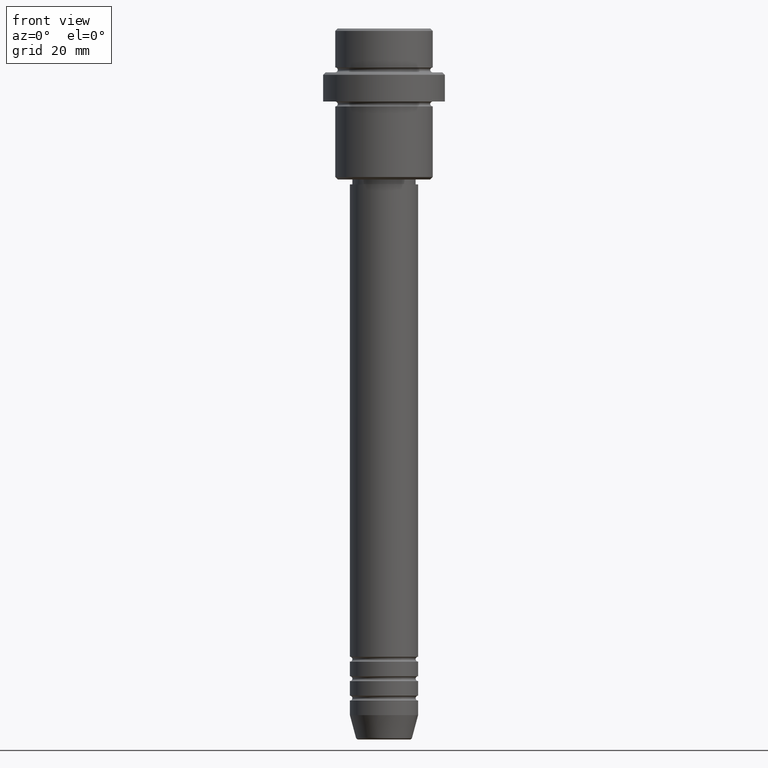
[diagram: clean part render]
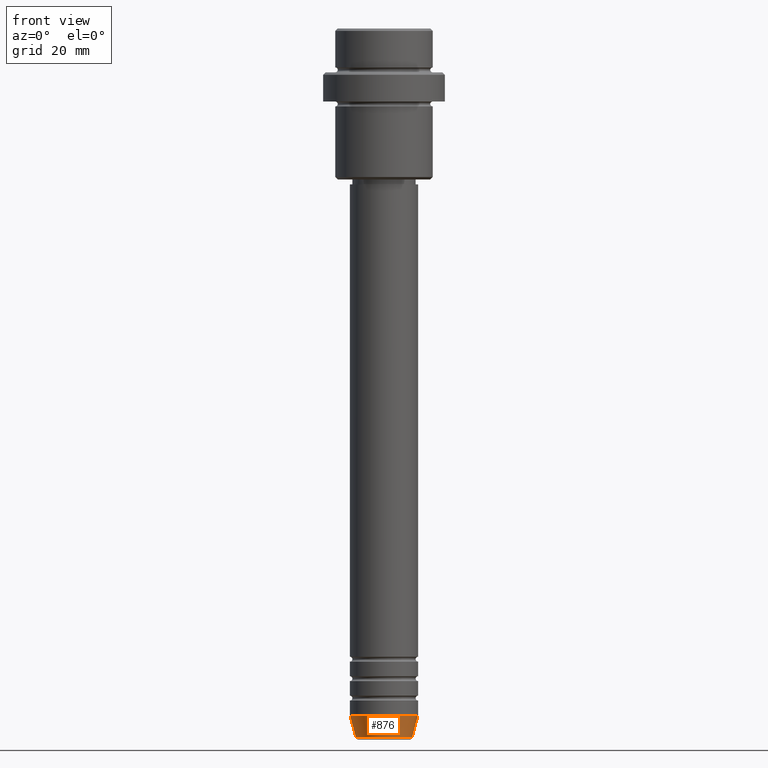
[diagram: same view with one face highlighted and labeled with its STEP entity id]
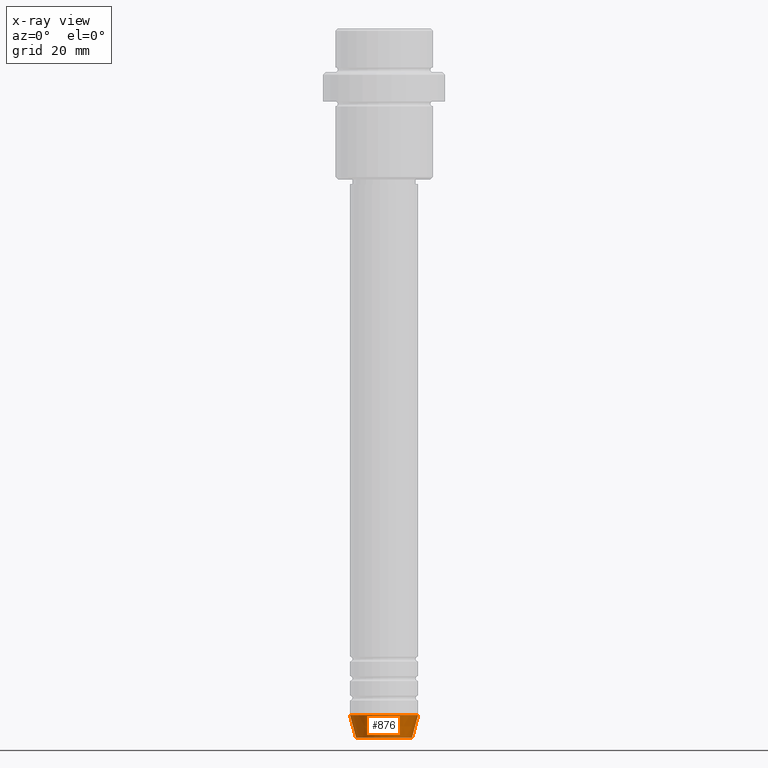
[diagram: x-ray of the same camera — body ghosted, the highlighted face saturated]
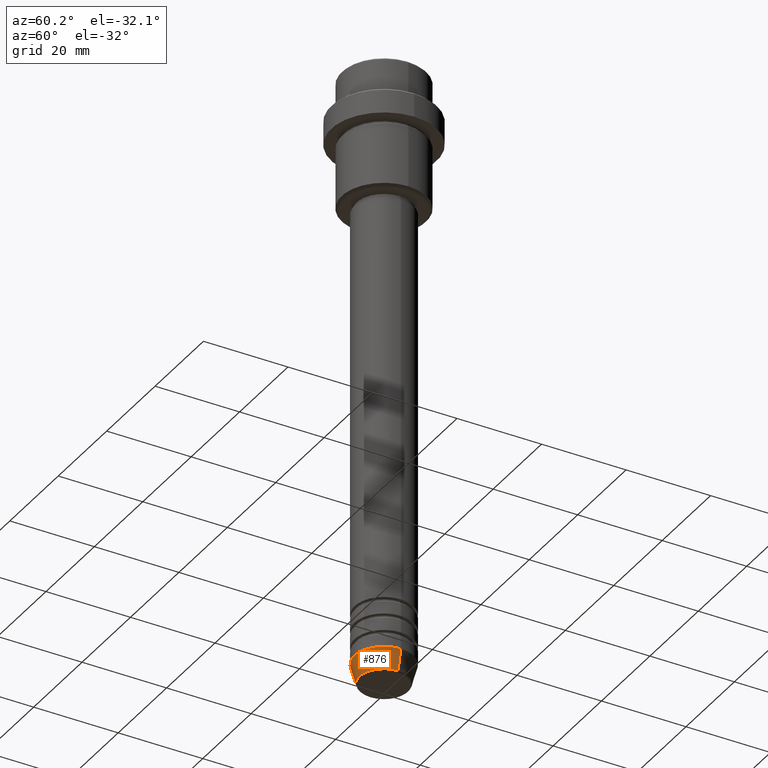
[diagram: same view with one face highlighted and labeled with its STEP entity id]
A machine part, front view. The second image highlights one B-rep face of the part: STEP entity #876.
The next image is the same camera in x-ray: the body ghosted, the highlighted face saturated — about 0% of this face is hidden behind the body in this view.
A second angle (auxiliary view) of the same face is appended — the face is thin or edge-on in the first view.
In plain terms, the highlighted conical surface has half-angle 15 deg.
Its self-contained STEP definition (entity closure, byte-faithful):
#13 = CARTESIAN_POINT ( 'NONE',  ( 5.759553456999437770, 0.000000000000000000, -145.6294095225512137 ) ) ;
#112 = LINE ( 'NONE', #540, #1101 ) ;
#131 = DIRECTION ( 'NONE',  ( 1.000000000000000000, 0.000000000000000000, 0.000000000000000000 ) ) ;
#133 = EDGE_CURVE ( 'NONE', #568, #210, #112, .T. ) ;
#148 = EDGE_CURVE ( 'NONE', #568, #611, #497, .T. ) ;
#194 = DIRECTION ( 'NONE',  ( 1.000000000000000000, 0.000000000000000000, 0.000000000000000000 ) ) ;
#210 = VERTEX_POINT ( 'NONE', #1024 ) ;
#225 = DIRECTION ( 'NONE',  ( -0.000000000000000000, -0.000000000000000000, 1.000000000000000000 ) ) ;
#255 = VECTOR ( 'NONE', #525, 1000.000000000000114 ) ;
#318 = LINE ( 'NONE', #515, #255 ) ;
#398 = CIRCLE ( 'NONE', #1192, 7.000000000000000000 ) ;
#497 = CIRCLE ( 'NONE', #1054, 5.759553456999437770 ) ;
#515 = CARTESIAN_POINT ( 'NONE',  ( 7.000000000000000000, 0.000000000000000000, -141.0000000000000000 ) ) ;
#525 = DIRECTION ( 'NONE',  ( 0.2588190451025227379, 0.000000000000000000, 0.9659258262890676461 ) ) ;
#540 = CARTESIAN_POINT ( 'NONE',  ( -7.000000000000000000, 8.572527594031473190E-16, -141.0000000000000000 ) ) ;
#541 = CONICAL_SURFACE ( 'NONE', #1361, 7.000000000000000000, 0.2617993877991514617 ) ;
#561 = CARTESIAN_POINT ( 'NONE',  ( 7.000000000000000000, 0.000000000000000000, -141.0000000000000000 ) ) ;
#568 = VERTEX_POINT ( 'NONE', #1051 ) ;
#611 = VERTEX_POINT ( 'NONE', #13 ) ;
#718 = ORIENTED_EDGE ( 'NONE', *, *, #949, .F. ) ;
#769 = DIRECTION ( 'NONE',  ( -0.2588190451025227379, 3.169619151431788361E-17, 0.9659258262890676461 ) ) ;
#823 = ORIENTED_EDGE ( 'NONE', *, *, #148, .T. ) ;
#837 = EDGE_CURVE ( 'NONE', #611, #900, #318, .T. ) ;
#876 = ADVANCED_FACE ( 'NONE', ( #1111 ), #541, .T. ) ;
#900 = VERTEX_POINT ( 'NONE', #561 ) ;
#942 = ORIENTED_EDGE ( 'NONE', *, *, #133, .F. ) ;
#949 = EDGE_CURVE ( 'NONE', #210, #900, #398, .T. ) ;
#951 = CARTESIAN_POINT ( 'NONE',  ( 0.000000000000000000, 0.000000000000000000, -141.0000000000000000 ) ) ;
#998 = CARTESIAN_POINT ( 'NONE',  ( 0.000000000000000000, 0.000000000000000000, -141.0000000000000000 ) ) ;
#1024 = CARTESIAN_POINT ( 'NONE',  ( -7.000000000000000000, 8.572527594031473190E-16, -141.0000000000000000 ) ) ;
#1051 = CARTESIAN_POINT ( 'NONE',  ( -5.759553456999437770, 7.812973149831953745E-16, -145.6294095225512137 ) ) ;
#1054 = AXIS2_PLACEMENT_3D ( 'NONE', #1204, #225, #1109 ) ;
#1101 = VECTOR ( 'NONE', #769, 1000.000000000000114 ) ;
#1109 = DIRECTION ( 'NONE',  ( 1.000000000000000000, 0.000000000000000000, 0.000000000000000000 ) ) ;
#1111 = FACE_OUTER_BOUND ( 'NONE', #1308, .T. ) ;
#1179 = DIRECTION ( 'NONE',  ( -0.000000000000000000, -0.000000000000000000, 1.000000000000000000 ) ) ;
#1192 = AXIS2_PLACEMENT_3D ( 'NONE', #951, #1179, #194 ) ;
#1204 = CARTESIAN_POINT ( 'NONE',  ( 0.000000000000000000, 0.000000000000000000, -145.6294095225512137 ) ) ;
#1214 = ORIENTED_EDGE ( 'NONE', *, *, #837, .T. ) ;
#1217 = DIRECTION ( 'NONE',  ( -0.000000000000000000, -0.000000000000000000, 1.000000000000000000 ) ) ;
#1308 = EDGE_LOOP ( 'NONE', ( #942, #823, #1214, #718 ) ) ;
#1361 = AXIS2_PLACEMENT_3D ( 'NONE', #998, #1217, #131 ) ;